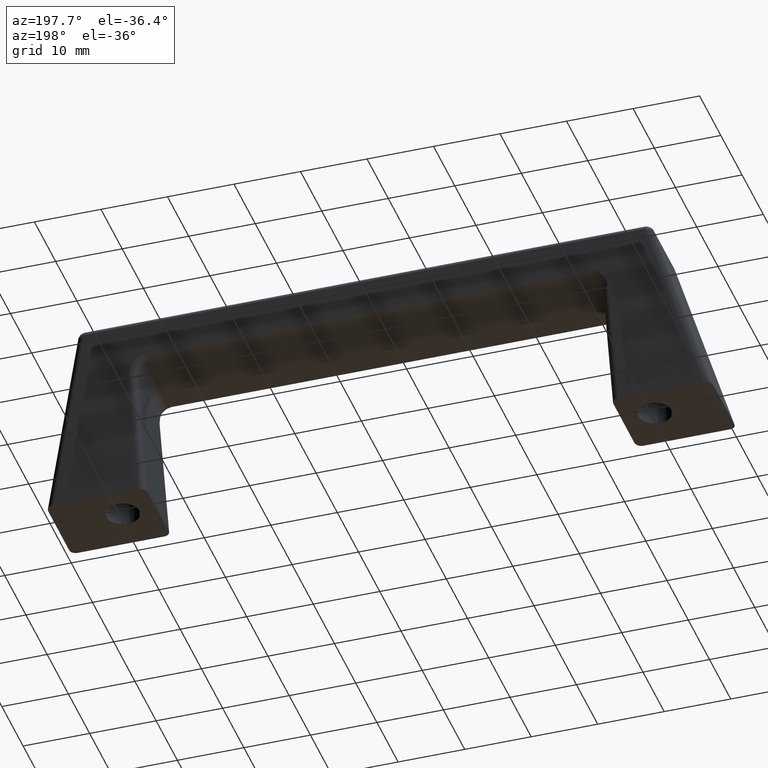
[diagram: clean part render]
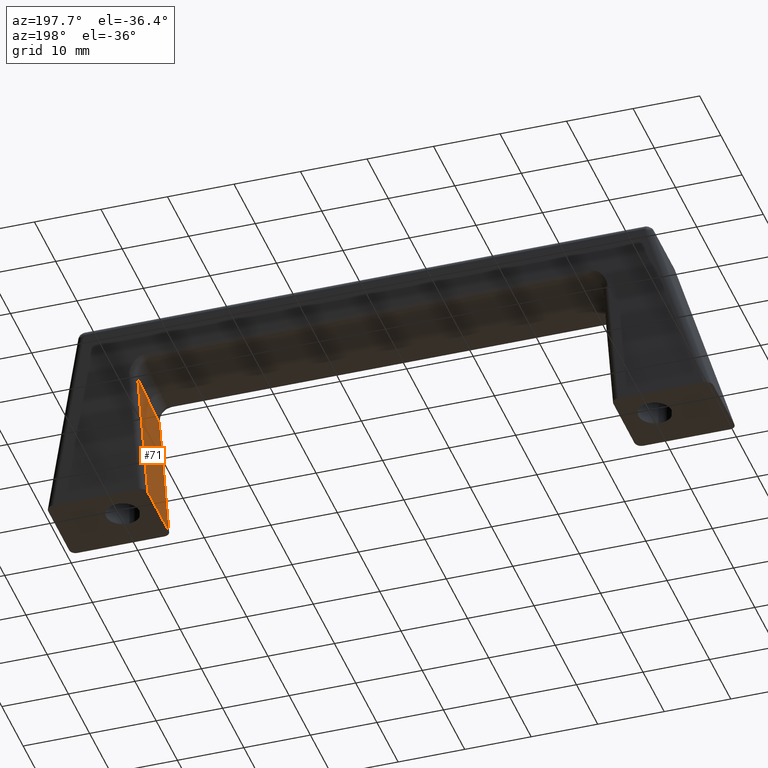
[diagram: same view with one face highlighted and labeled with its STEP entity id]
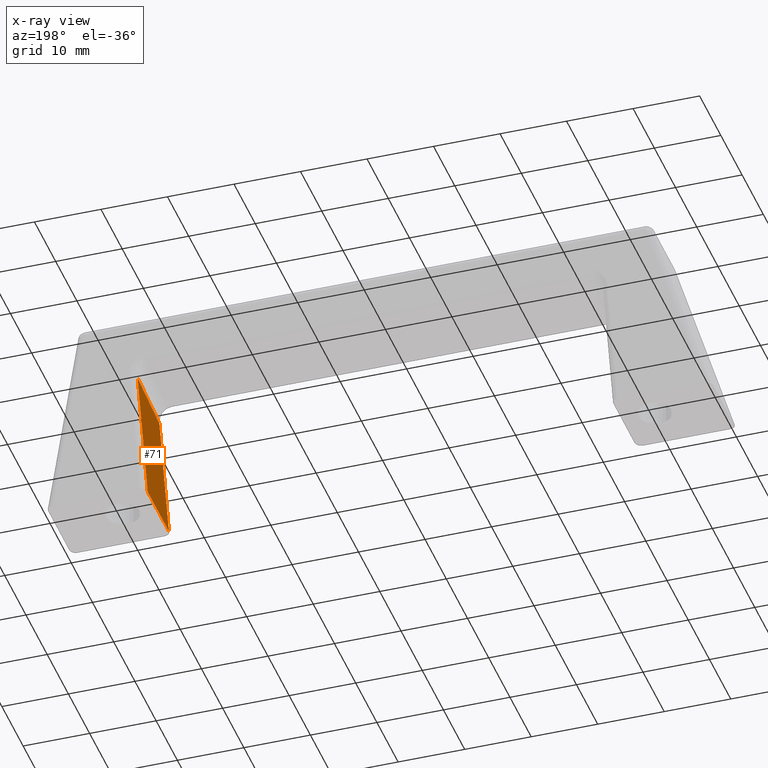
[diagram: x-ray of the same camera — body ghosted, the highlighted face saturated]
A machine part, auxiliary view. The second image highlights one B-rep face of the part: STEP entity #71.
The next image is the same camera in x-ray: the body ghosted, the highlighted face saturated — about 0% of this face is hidden behind the body in this view.
In plain terms, the highlighted planar face has unit normal (1, -0, 0).
Its self-contained STEP definition (entity closure, byte-faithful):
#71=ADVANCED_FACE('',(#393),#392,.F.);
#392=PLANE('',#1545);
#393=FACE_OUTER_BOUND('',#1546,.T.);
#1542=CARTESIAN_POINT('',(3.50000000000E+01,-4.25907587730E-01,1.85460274846E+01));
#1543=DIRECTION('',(1.00000000000E+00,-0.00000000000E+00,0.00000000000E+00));
#1544=DIRECTION('',(0.00000000000E+00,0.00000000000E+00,-1.00000000000E+00));
#1545=AXIS2_PLACEMENT_3D('',#1542,#1543,#1544);
#1546=EDGE_LOOP('',(#1725,#1726,#1727,#1728));
#1725=ORIENTED_EDGE('',*,*,#1848,.T.);
#1726=ORIENTED_EDGE('',*,*,#1775,.T.);
#1727=ORIENTED_EDGE('',*,*,#1834,.T.);
#1728=ORIENTED_EDGE('',*,*,#1832,.T.);
#1775=EDGE_CURVE('',#1892,#1885,#1893,.T.);
#1832=EDGE_CURVE('',#2249,#2268,#2276,.T.);
#1834=EDGE_CURVE('',#1885,#2249,#2288,.T.);
#1848=EDGE_CURVE('',#2268,#1892,#2375,.T.);
#1885=VERTEX_POINT('',#2487);
#1892=VERTEX_POINT('',#2492);
#1893=LINE('',#2493,#2494);
#2249=VERTEX_POINT('',#2720);
#2268=VERTEX_POINT('',#2733);
#2276=LINE('',#2740,#2741);
#2288=LINE('',#2746,#2747);
#2375=LINE('',#2794,#2795);
#2487=CARTESIAN_POINT('',(3.50000000000E+01,5.52732537403E+00,1.60331000322E+01));
#2492=CARTESIAN_POINT('',(3.50000000000E+01,1.03845373337E+00,0.00000000000E+00));
#2493=CARTESIAN_POINT('',(3.50000000000E+01,1.03845373337E+00,0.00000000000E+00));
#2494=VECTOR('',#2495,1.66496325860E+01);
#2495=DIRECTION('',(0.00000000000E+00,2.69607849751E-01,9.62970200657E-01));
#2720=CARTESIAN_POINT('',(3.50000000000E+01,1.56820669444E+01,1.68600249860E+01));
#2733=CARTESIAN_POINT('',(3.50000000000E+01,1.09615441460E+01,0.00000000000E+00));
#2740=CARTESIAN_POINT('',(3.50000000000E+01,1.56820669444E+01,1.68600249860E+01));
#2741=VECTOR('',#2742,1.75083916457E+01);
#2742=DIRECTION('',(0.00000000000E+00,-2.69614873483E-01,-9.62968234158E-01));
#2746=CARTESIAN_POINT('',(3.50000000000E+01,5.52732537403E+00,1.60331000322E+01));
#2747=VECTOR('',#2748,1.01883551784E+01);
#2748=DIRECTION('',(0.00000000000E+00,9.96700781687E-01,8.11637344147E-02));
#2794=CARTESIAN_POINT('',(3.50000000000E+01,1.09615441460E+01,0.00000000000E+00));
#2795=VECTOR('',#2796,9.92309041260E+00);
#2796=DIRECTION('',(0.00000000000E+00,-1.00000000000E+00,0.00000000000E+00));